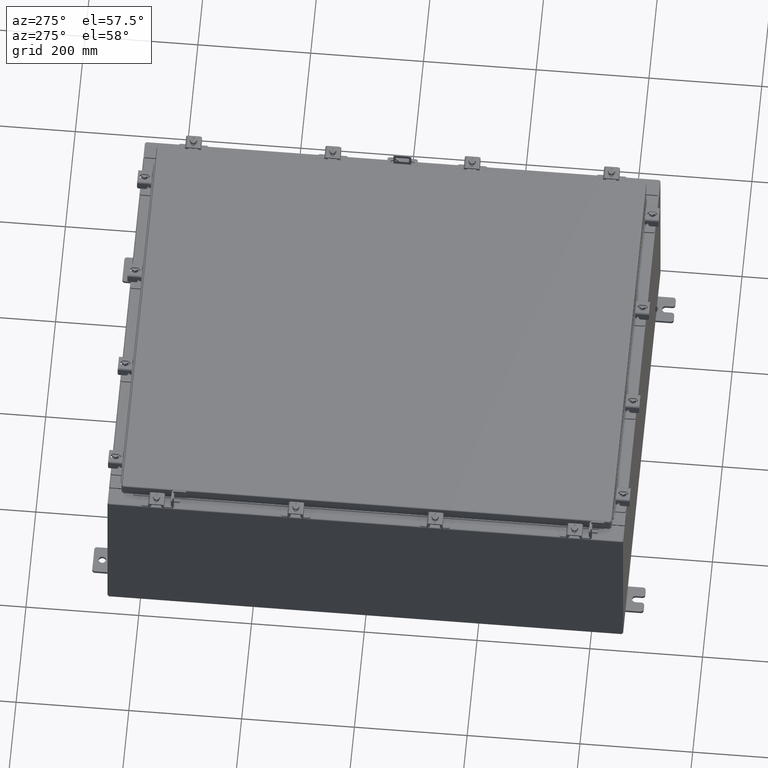
[diagram: clean part render]
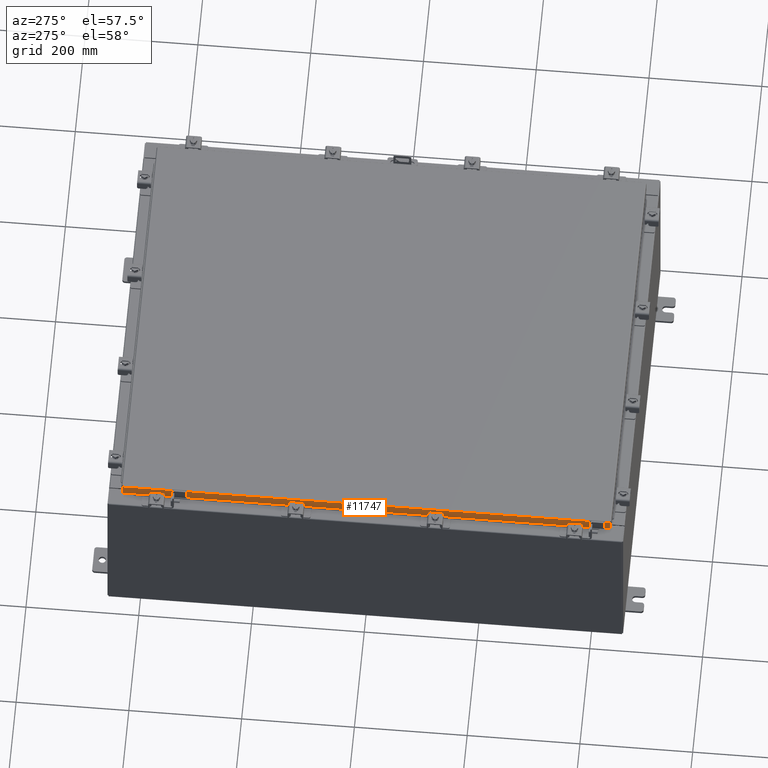
[diagram: same view with one face highlighted and labeled with its STEP entity id]
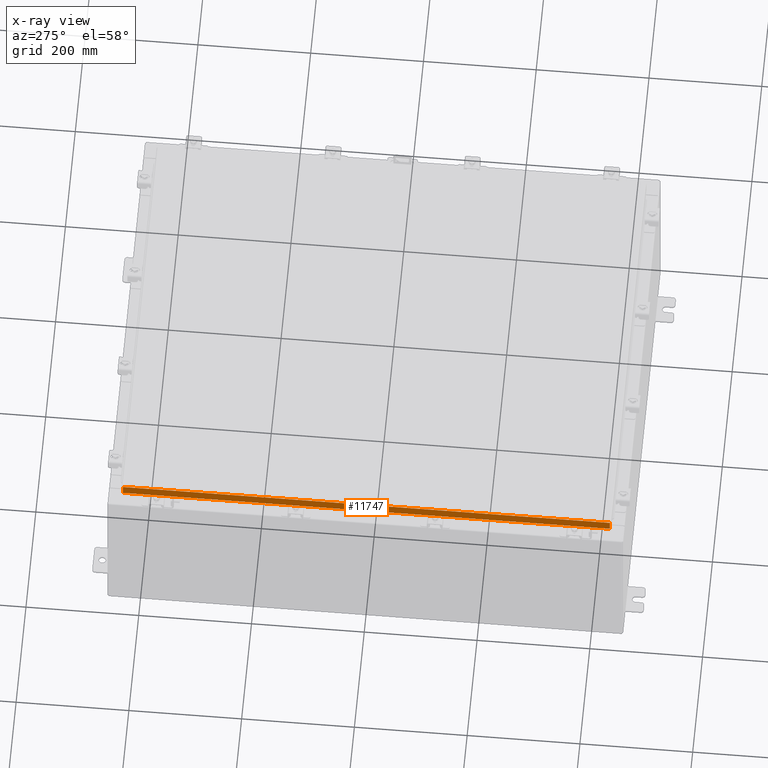
[diagram: x-ray of the same camera — body ghosted, the highlighted face saturated]
A machine part, auxiliary view. The second image highlights one B-rep face of the part: STEP entity #11747.
The next image is the same camera in x-ray: the body ghosted, the highlighted face saturated — about 0% of this face is hidden behind the body in this view.
In plain terms, the highlighted planar face has unit normal (1, 0, -0).
Its self-contained STEP definition (entity closure, byte-faithful):
#231 = FACE_OUTER_BOUND ( 'NONE', #18210, .T. ) ;
#734 = DIRECTION ( 'NONE',  ( 3.491332948470575600E-031, -1.000000000000000000, -9.516562228463834600E-046 ) ) ;
#1763 = DIRECTION ( 'NONE',  ( -2.818880942772360500E-015, 6.982962677686269100E-015, -1.000000000000000000 ) ) ;
#2469 = LINE ( 'NONE', #5274, #17079 ) ;
#2973 = VERTEX_POINT ( 'NONE', #6586 ) ;
#3203 = CARTESIAN_POINT ( 'NONE',  ( -14.07799999999999400, 16.25515786437627200, -0.8500000000000025300 ) ) ;
#3326 = CARTESIAN_POINT ( 'NONE',  ( -14.07800000000000300, -17.09400000000000100, -0.8499999999999996400 ) ) ;
#3361 = VERTEX_POINT ( 'NONE', #16306 ) ;
#3515 = DIRECTION ( 'NONE',  ( 1.000000000000000000, 3.491332948470575600E-031, -2.818880942772360100E-015 ) ) ;
#4583 = ORIENTED_EDGE ( 'NONE', *, *, #17234, .F. ) ;
#5274 = CARTESIAN_POINT ( 'NONE',  ( -14.07800000000000300, -17.09400000000000100, -0.8499999999999996400 ) ) ;
#6586 = CARTESIAN_POINT ( 'NONE',  ( -14.07800000000000300, -17.00515786437626900, -0.8499999999999996400 ) ) ;
#7217 = ORIENTED_EDGE ( 'NONE', *, *, #14567, .F. ) ;
#7236 = CARTESIAN_POINT ( 'NONE',  ( -14.07799999999999900, -4.915098524856876500E-030, 3.994501956836086200E-014 ) ) ;
#8544 = LINE ( 'NONE', #3326, #18106 ) ;
#8830 = LINE ( 'NONE', #15465, #18382 ) ;
#9459 = CARTESIAN_POINT ( 'NONE',  ( -14.07799999999999400, -16.25515786437626500, -0.8500000000000025300 ) ) ;
#9696 = DIRECTION ( 'NONE',  ( -2.818880942772360500E-015, 6.982962677686269100E-015, -1.000000000000000000 ) ) ;
#10394 = VECTOR ( 'NONE', #11534, 39.37007874015748100 ) ;
#10465 = VERTEX_POINT ( 'NONE', #14124 ) ;
#10977 = EDGE_CURVE ( 'NONE', #10465, #20674, #8830, .T. ) ;
#11311 = DIRECTION ( 'NONE',  ( 4.379057701015054300E-047, 1.000000000000000000, 1.238552822680358400E-016 ) ) ;
#11484 = EDGE_CURVE ( 'NONE', #3361, #2973, #24521, .T. ) ;
#11534 = DIRECTION ( 'NONE',  ( -0.0000000000000000000, 1.000000000000000000, -0.0000000000000000000 ) ) ;
#11747 = ADVANCED_FACE ( 'NONE', ( #231 ), #13014, .F. ) ;
#12021 = ORIENTED_EDGE ( 'NONE', *, *, #22956, .F. ) ;
#12129 = CARTESIAN_POINT ( 'NONE',  ( -14.07799999999999900, -17.09400000000000100, -0.08770000000000007000 ) ) ;
#13014 = PLANE ( 'NONE',  #20287 ) ;
#13234 = LINE ( 'NONE', #12129, #14423 ) ;
#14124 = CARTESIAN_POINT ( 'NONE',  ( -14.07799999999999900, 17.00515786437626500, -0.08770000000000007000 ) ) ;
#14423 = VECTOR ( 'NONE', #734, 39.37007874015748100 ) ;
#14567 = EDGE_CURVE ( 'NONE', #18915, #20674, #2469, .T. ) ;
#15465 = CARTESIAN_POINT ( 'NONE',  ( -14.07799999999999900, 17.00515786437626500, 1.586914022634634500E-013 ) ) ;
#16273 = ORIENTED_EDGE ( 'NONE', *, *, #19574, .F. ) ;
#16306 = CARTESIAN_POINT ( 'NONE',  ( -14.07799999999999900, -17.00515786437626900, -0.08770000000000007000 ) ) ;
#16454 = VERTEX_POINT ( 'NONE', #9459 ) ;
#16856 = DIRECTION ( 'NONE',  ( -2.818880942772360100E-015, 0.0000000000000000000, -1.000000000000000000 ) ) ;
#17079 = VECTOR ( 'NONE', #11311, 39.37007874015748100 ) ;
#17234 = EDGE_CURVE ( 'NONE', #16454, #18915, #20487, .T. ) ;
#17270 = CARTESIAN_POINT ( 'NONE',  ( -14.07799999999999400, -16.25515786437626900, -0.8500000000000025300 ) ) ;
#18106 = VECTOR ( 'NONE', #18564, 39.37007874015748100 ) ;
#18210 = EDGE_LOOP ( 'NONE', ( #12021, #23208, #7217, #4583, #16273, #22023 ) ) ;
#18382 = VECTOR ( 'NONE', #9696, 39.37007874015748100 ) ;
#18564 = DIRECTION ( 'NONE',  ( 4.379057701015054300E-047, 1.000000000000000000, 1.238552822680358400E-016 ) ) ;
#18915 = VERTEX_POINT ( 'NONE', #3203 ) ;
#18941 = VECTOR ( 'NONE', #1763, 39.37007874015748100 ) ;
#19574 = EDGE_CURVE ( 'NONE', #2973, #16454, #8544, .T. ) ;
#20287 = AXIS2_PLACEMENT_3D ( 'NONE', #7236, #3515, #16856 ) ;
#20487 = LINE ( 'NONE', #17270, #10394 ) ;
#20674 = VERTEX_POINT ( 'NONE', #23299 ) ;
#22023 = ORIENTED_EDGE ( 'NONE', *, *, #11484, .F. ) ;
#22956 = EDGE_CURVE ( 'NONE', #10465, #3361, #13234, .T. ) ;
#23208 = ORIENTED_EDGE ( 'NONE', *, *, #10977, .T. ) ;
#23299 = CARTESIAN_POINT ( 'NONE',  ( -14.07800000000000300, 17.00515786437627200, -0.8499999999999953100 ) ) ;
#24482 = CARTESIAN_POINT ( 'NONE',  ( -14.07799999999999900, -17.00515786437627200, -0.07469999999999978000 ) ) ;
#24521 = LINE ( 'NONE', #24482, #18941 ) ;